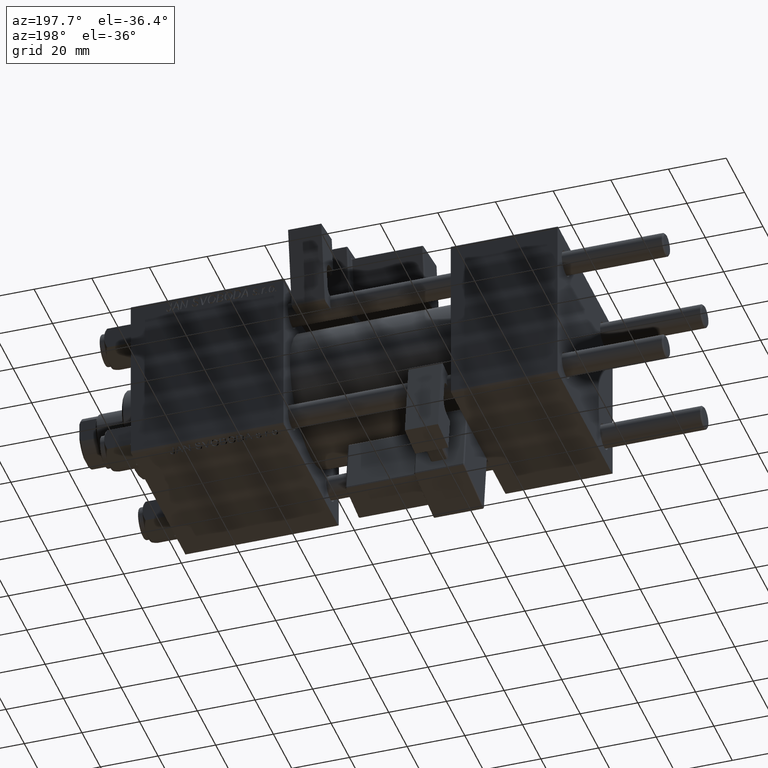
[diagram: clean part render]
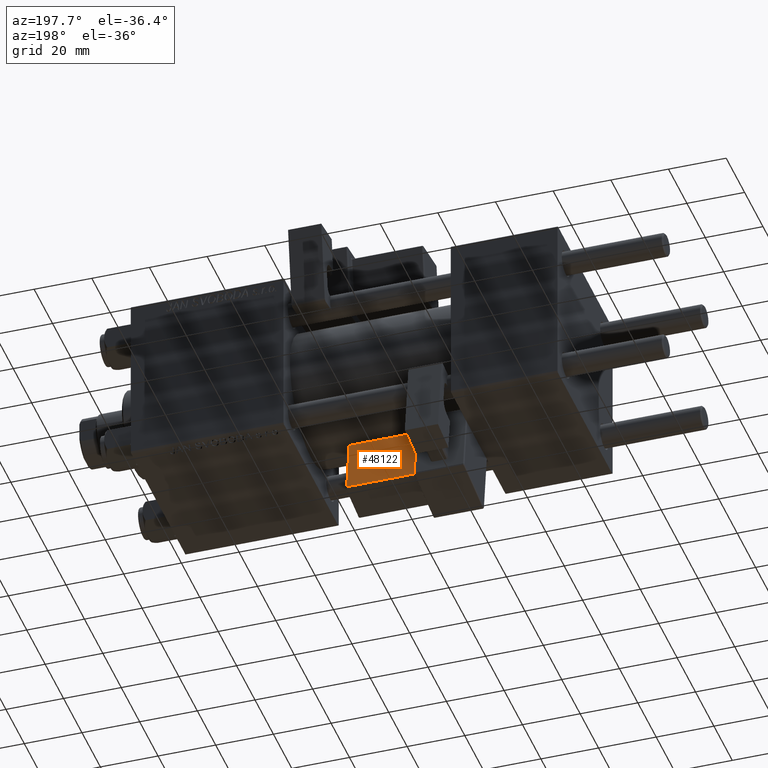
[diagram: same view with one face highlighted and labeled with its STEP entity id]
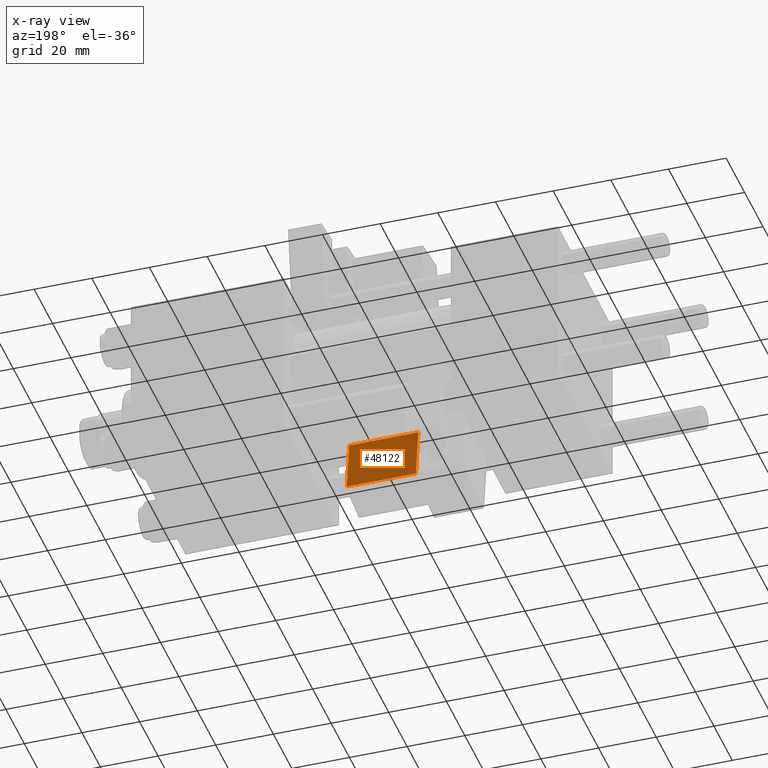
[diagram: x-ray of the same camera — body ghosted, the highlighted face saturated]
A machine part, auxiliary view. The second image highlights one B-rep face of the part: STEP entity #48122.
The next image is the same camera in x-ray: the body ghosted, the highlighted face saturated — about 2% of this face is hidden behind the body in this view.
In plain terms, the highlighted planar face has unit normal (-0, -0.9902, -0.1399).
Its self-contained STEP definition (entity closure, byte-faithful):
#467 = DIRECTION ( 'NONE',  ( 1.734723475976807587E-16, -0.000000000000000000, -1.000000000000000000 ) ) ;
#1170 = EDGE_LOOP ( 'NONE', ( #43694, #37499, #31982, #43682 ) ) ;
#2628 = EDGE_CURVE ( 'NONE', #51588, #26307, #21521, .T. ) ;
#3843 = LINE ( 'NONE', #48060, #25861 ) ;
#4384 = VECTOR ( 'NONE', #467, 1000.000000000000000 ) ;
#15292 = LINE ( 'NONE', #50845, #46738 ) ;
#17421 = EDGE_CURVE ( 'NONE', #26307, #41402, #45563, .T. ) ;
#18390 = EDGE_CURVE ( 'NONE', #41402, #22797, #15292, .T. ) ;
#21521 = LINE ( 'NONE', #24680, #4384 ) ;
#22015 = CARTESIAN_POINT ( 'NONE',  ( 33.25000000000000000, -17.24999999999999289, 21.50000000000000711 ) ) ;
#22797 = VERTEX_POINT ( 'NONE', #40996 ) ;
#22970 = EDGE_CURVE ( 'NONE', #22797, #51588, #3843, .T. ) ;
#24406 = FACE_OUTER_BOUND ( 'NONE', #1170, .T. ) ;
#24680 = CARTESIAN_POINT ( 'NONE',  ( 33.25000000000000000, -17.24999999999999289, 2.000000000000010214 ) ) ;
#25861 = VECTOR ( 'NONE', #52025, 1000.000000000000000 ) ;
#26307 = VERTEX_POINT ( 'NONE', #34649 ) ;
#31982 = ORIENTED_EDGE ( 'NONE', *, *, #22970, .T. ) ;
#32834 = CARTESIAN_POINT ( 'NONE',  ( 33.75000000000000000, -17.24999999999999289, 22.00000000000001066 ) ) ;
#34534 = DIRECTION ( 'NONE',  ( -1.334402673828313339E-16, 0.000000000000000000, 1.000000000000000000 ) ) ;
#34649 = CARTESIAN_POINT ( 'NONE',  ( 33.25000000000000000, -17.24999999999999289, 2.500000000000009326 ) ) ;
#34934 = AXIS2_PLACEMENT_3D ( 'NONE', #32834, #44941, #48891 ) ;
#37499 = ORIENTED_EDGE ( 'NONE', *, *, #18390, .T. ) ;
#38448 = DIRECTION ( 'NONE',  ( -1.000000000000000000, 0.000000000000000000, -1.334402673828313339E-16 ) ) ;
#40996 = CARTESIAN_POINT ( 'NONE',  ( 9.250000000000001776, -17.24999999999999289, 21.50000000000000355 ) ) ;
#41402 = VERTEX_POINT ( 'NONE', #43027 ) ;
#43027 = CARTESIAN_POINT ( 'NONE',  ( 9.250000000000005329, -17.24999999999999289, 2.500000000000005773 ) ) ;
#43682 = ORIENTED_EDGE ( 'NONE', *, *, #2628, .T. ) ;
#43694 = ORIENTED_EDGE ( 'NONE', *, *, #17421, .T. ) ;
#44941 = DIRECTION ( 'NONE',  ( 0.000000000000000000, -1.000000000000000000, 0.000000000000000000 ) ) ;
#45563 = LINE ( 'NONE', #49779, #49218 ) ;
#46738 = VECTOR ( 'NONE', #34534, 1000.000000000000000 ) ;
#48060 = CARTESIAN_POINT ( 'NONE',  ( 33.75000000000000000, -17.24999999999999289, 21.50000000000000711 ) ) ;
#48122 = ADVANCED_FACE ( 'NONE', ( #24406 ), #49158, .F. ) ;
#48891 = DIRECTION ( 'NONE',  ( 0.000000000000000000, -0.000000000000000000, -1.000000000000000000 ) ) ;
#49158 = PLANE ( 'NONE',  #34934 ) ;
#49218 = VECTOR ( 'NONE', #38448, 1000.000000000000000 ) ;
#49779 = CARTESIAN_POINT ( 'NONE',  ( 33.75000000000000000, -17.24999999999999289, 2.500000000000009326 ) ) ;
#50845 = CARTESIAN_POINT ( 'NONE',  ( 9.250000000000001776, -17.24999999999999289, 22.00000000000000711 ) ) ;
#51588 = VERTEX_POINT ( 'NONE', #22015 ) ;
#52025 = DIRECTION ( 'NONE',  ( 1.000000000000000000, -0.000000000000000000, 1.334402673828313339E-16 ) ) ;